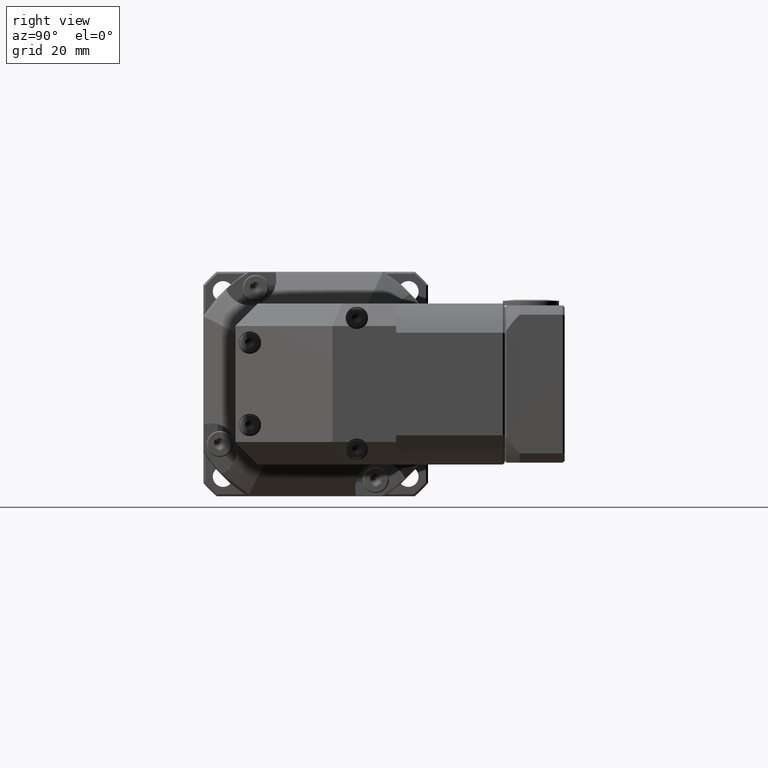
[diagram: clean part render]
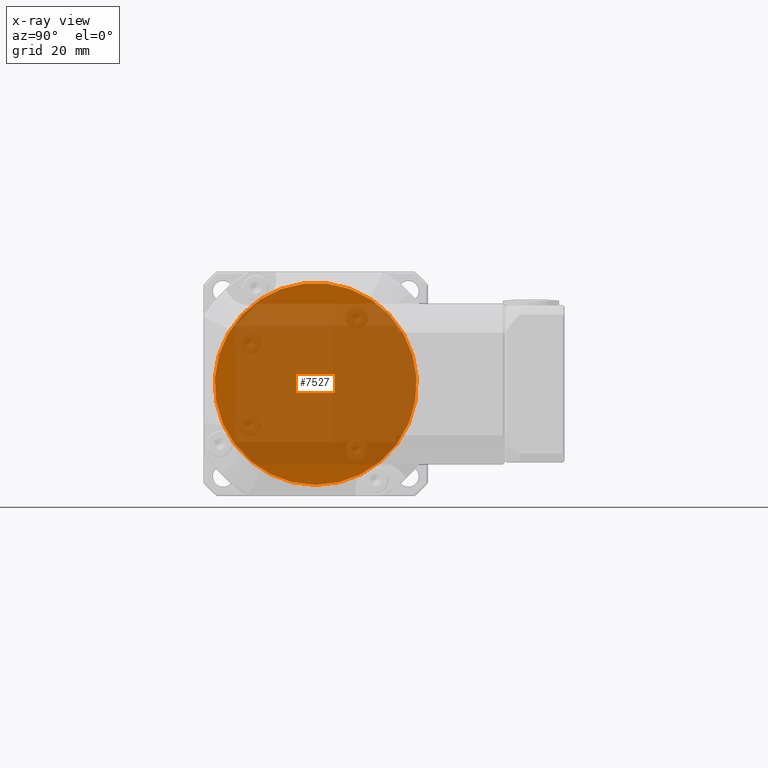
[diagram: x-ray — body ghosted, one internal face saturated and labeled with its STEP entity id]
A machine part, right view, then the same camera in x-ray: the body is ghosted and one INTERNAL B-rep face — a face not visible from any outside direction — is saturated and labeled: STEP entity #7527.
In plain terms, the highlighted planar face has unit normal (1, 0, -0).
Its self-contained STEP definition (entity closure, byte-faithful):
#1247=PLANE('',#8135);
#1744=FACE_OUTER_BOUND('',#2279,.T.);
#2279=EDGE_LOOP('',(#5322));
#2988=CIRCLE('',#8134,27.);
#3393=VERTEX_POINT('',#11491);
#4158=EDGE_CURVE('',#3393,#3393,#2988,.T.);
#5322=ORIENTED_EDGE('',*,*,#4158,.F.);
#7527=ADVANCED_FACE('',(#1744),#1247,.T.);
#8134=AXIS2_PLACEMENT_3D('',#11492,#9211,#9212);
#8135=AXIS2_PLACEMENT_3D('',#11493,#9213,#9214);
#9211=DIRECTION('center_axis',(-1.,-5.87515604742735E-16,1.08949767224559E-15));
#9212=DIRECTION('ref_axis',(1.08949767224559E-15,-2.51134257432613E-15,
1.));
#9213=DIRECTION('center_axis',(1.,5.87515604742735E-16,-1.08949767224559E-15));
#9214=DIRECTION('ref_axis',(-1.4210854715202E-15,2.48689957516035E-15,-1.));
#11491=CARTESIAN_POINT('',(-63.9042359944935,18.2695502360663,-71.174886812696));
#11492=CARTESIAN_POINT('Origin',(-63.9042359944935,18.2695502360663,-44.174886812696));
#11493=CARTESIAN_POINT('Origin',(-63.9042359944935,18.2695502360663,-44.174886812696));